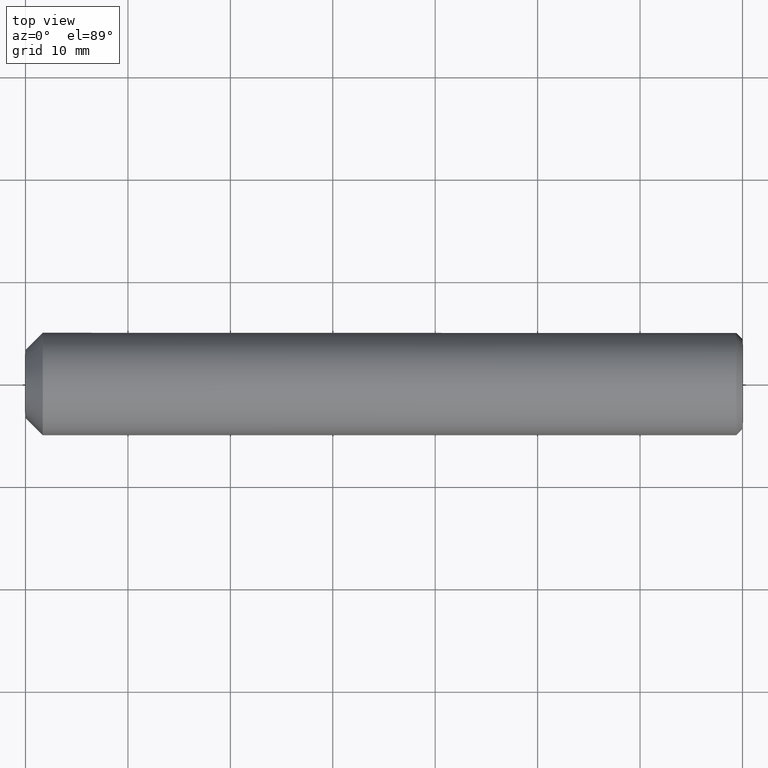
[diagram: clean part render]
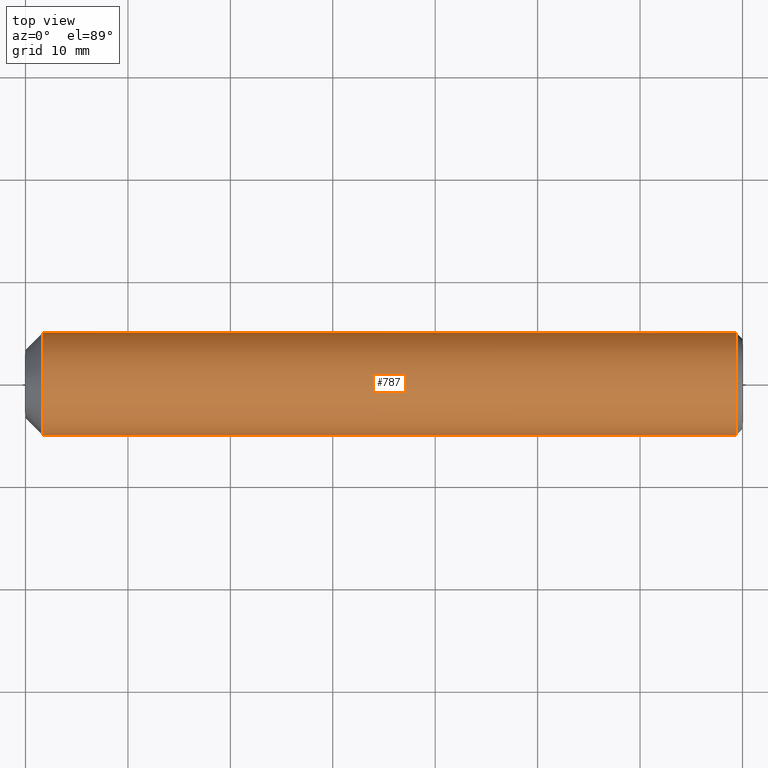
[diagram: same view with one face highlighted and labeled with its STEP entity id]
A machine part, top view. The second image highlights one B-rep face of the part: STEP entity #787.
In plain terms, the highlighted cylindrical surface (bore or boss wall) has radius 5 mm, axis along (-1, -0, -0).
Its self-contained STEP definition (entity closure, byte-faithful):
#787 = ADVANCED_FACE ( 'NONE', ( #6714, #13523 ), #6916, .T. ) ;
#820 = DIRECTION ( 'NONE',  ( -1.000000000000000000, -0.0000000000000000000, -0.0000000000000000000 ) ) ;
#3267 = DIRECTION ( 'NONE',  ( -1.000000000000000000, 2.701778727171049500E-017, -0.0000000000000000000 ) ) ;
#3397 = EDGE_LOOP ( 'NONE', ( #3591 ) ) ;
#3531 = DIRECTION ( 'NONE',  ( 0.0000000000000000000, 0.0000000000000000000, 1.000000000000000000 ) ) ;
#3591 = ORIENTED_EDGE ( 'NONE', *, *, #10792, .F. ) ;
#3706 = VERTEX_POINT ( 'NONE', #8065 ) ;
#4223 = AXIS2_PLACEMENT_3D ( 'NONE', #15595, #14371, #6438 ) ;
#4458 = ORIENTED_EDGE ( 'NONE', *, *, #10120, .T. ) ;
#4962 = CARTESIAN_POINT ( 'NONE',  ( 70.00000000000000000, 0.0000000000000000000, 0.0000000000000000000 ) ) ;
#6438 = DIRECTION ( 'NONE',  ( 0.0000000000000000000, 0.0000000000000000000, -1.000000000000000000 ) ) ;
#6714 = FACE_OUTER_BOUND ( 'NONE', #11825, .T. ) ;
#6916 = CYLINDRICAL_SURFACE ( 'NONE', #7841, 5.000000000000000000 ) ;
#7196 = DIRECTION ( 'NONE',  ( -4.336808689942018400E-017, -1.000000000000000000, 0.0000000000000000000 ) ) ;
#7430 = VERTEX_POINT ( 'NONE', #14529 ) ;
#7841 = AXIS2_PLACEMENT_3D ( 'NONE', #4962, #820, #3531 ) ;
#8065 = CARTESIAN_POINT ( 'NONE',  ( 69.40000000000000600, 0.0000000000000000000, -5.000000000000000000 ) ) ;
#10120 = EDGE_CURVE ( 'NONE', #3706, #3706, #14934, .T. ) ;
#10480 = CIRCLE ( 'NONE', #13630, 4.999999999999999100 ) ;
#10792 = EDGE_CURVE ( 'NONE', #7430, #7430, #10480, .T. ) ;
#10986 = CARTESIAN_POINT ( 'NONE',  ( 1.679999999999973100, -4.538988261647290200E-017, 0.0000000000000000000 ) ) ;
#11825 = EDGE_LOOP ( 'NONE', ( #4458 ) ) ;
#13523 = FACE_OUTER_BOUND ( 'NONE', #3397, .T. ) ;
#13630 = AXIS2_PLACEMENT_3D ( 'NONE', #10986, #3267, #7196 ) ;
#14371 = DIRECTION ( 'NONE',  ( -1.000000000000000000, 0.0000000000000000000, 0.0000000000000000000 ) ) ;
#14529 = CARTESIAN_POINT ( 'NONE',  ( 1.679999999999972800, -4.999999999999999100, 0.0000000000000000000 ) ) ;
#14934 = CIRCLE ( 'NONE', #4223, 5.000000000000000000 ) ;
#15595 = CARTESIAN_POINT ( 'NONE',  ( 69.40000000000000600, 0.0000000000000000000, 0.0000000000000000000 ) ) ;